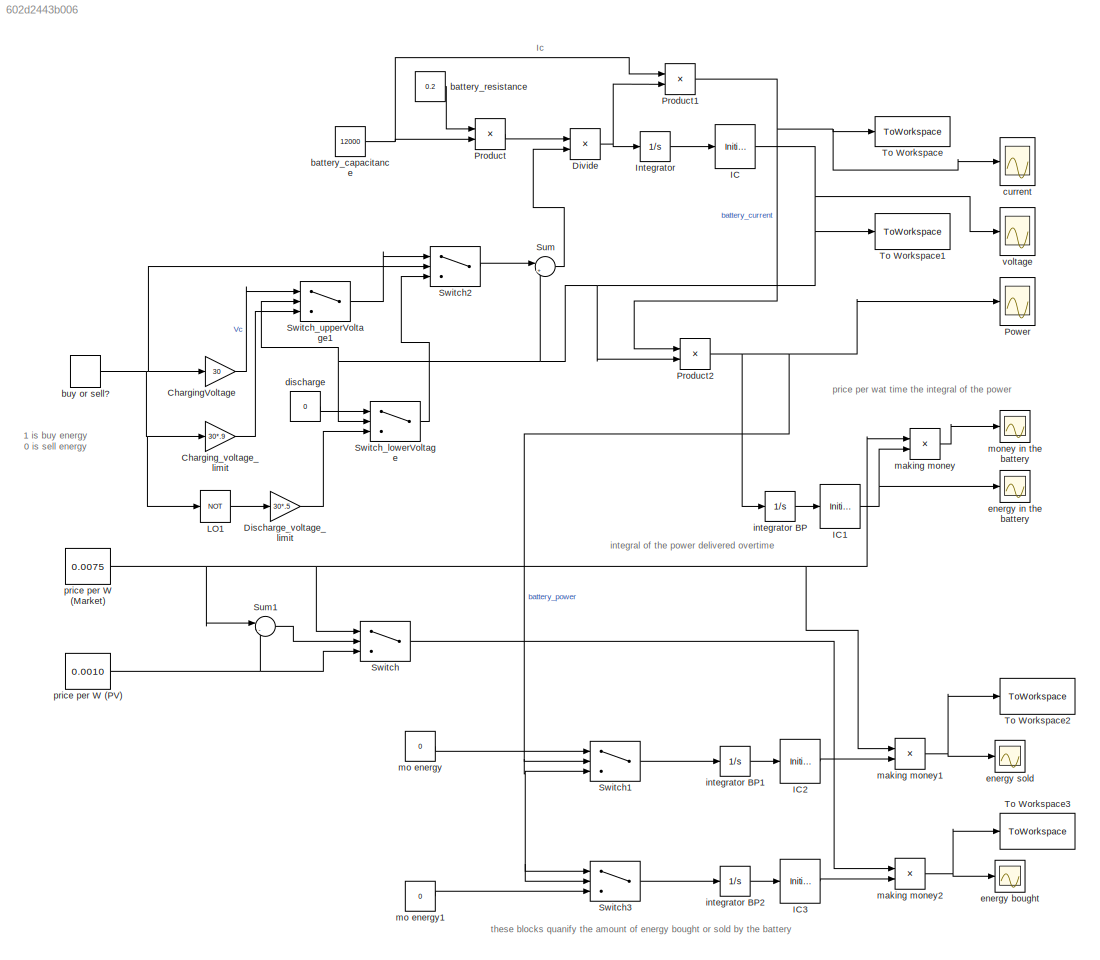
MODEL slx_602d2443b006
KIND model
CONFIG AbsTol = auto
CONFIG EnableMultiTasking = off
CONFIG FixedStep = 1
CONFIG MaxStep = 1e-4
CONFIG MinStep = auto
CONFIG RelTol = 1e-3
CONFIG SampleTimeConstraint = Unconstrained
CONFIG Solver = FixedStepAuto
CONFIG SolverName = FixedStepAuto
CONFIG StartTime = 0.0
CONFIG StopTime = 86400
BLOCK [Gain] ChargingVoltage 
  Gain = 30
  OutDataTypeStr = Inherit: Inherit via internal rule
  ParamDataTypeStr = Inherit: Inherit via internal rule
  SaturateOnIntegerOverflow = off
BLOCK [Gain] Charging_voltage_limit 
  Gain = 30*.9
  OutDataTypeStr = Inherit: Inherit via internal rule
  ParamDataTypeStr = Inherit: Inherit via internal rule
  SaturateOnIntegerOverflow = off
BLOCK [Gain] Discharge_voltage_limit
  Gain = 30*.5
  OutDataTypeStr = Inherit: Inherit via internal rule
  ParamDataTypeStr = Inherit: Inherit via internal rule
  SaturateOnIntegerOverflow = off
BLOCK [Product] Divide
  InputSameDT = off
  Inputs = /*
  OutDataTypeStr = Inherit: Inherit via internal rule
  Ports = [2, 1]
  RndMeth = Floor
  SaturateOnIntegerOverflow = off
BLOCK [InitialCondition] IC
  Value = 0
BLOCK [InitialCondition] IC1
  Value = 0
BLOCK [InitialCondition] IC2
  Value = 0
BLOCK [InitialCondition] IC3
  Value = 0
BLOCK [Integrator] Integrator
  InitialCondition = 30*.2
  Ports = [1, 1]
BLOCK [Logic] LO1
  AllPortsSameDT = off
  Operator = NOT
  OutDataTypeStr = boolean
  Ports = [1, 1]
BLOCK [Scope] Power
  NumInputPorts = 1
  Ports = [1]
  ScopeSpecificationString = Simulink.scopes.TimeScopeBlockCfg('CurrentConfiguration', extmgr.ConfigurationSet(extmgr.Configuration('Core','General UI',true),extmgr.Configuration('Core','Source UI',true),extmgr.Configuration('Sources','WiredSimulink',true,'DataLoggingVariableName','ScopeData2'),extmgr.Configuration('Visuals','Time Domain',true,'SerializedDisplays',{struct('MinYLimReal','-3920.78544','MaxYLimReal','1448.14281'...<+1421ch>
BLOCK [Product] Product
  InputSameDT = off
  OutDataTypeStr = Inherit: Inherit via internal rule
  Ports = [2, 1]
  RndMeth = Floor
  SaturateOnIntegerOverflow = off
BLOCK [Product] Product1
  InputSameDT = off
  OutDataTypeStr = Inherit: Inherit via internal rule
  Ports = [2, 1]
  RndMeth = Floor
  SaturateOnIntegerOverflow = off
BLOCK [Product] Product2
  InputSameDT = off
  OutDataTypeStr = Inherit: Inherit via internal rule
  Ports = [2, 1]
  RndMeth = Floor
  SaturateOnIntegerOverflow = off
BLOCK [Sum] Sum
  IconShape = round
  InputSameDT = off
  Inputs = |+-
  OutDataTypeStr = Inherit: Inherit via internal rule
  Ports = [2, 1]
  SaturateOnIntegerOverflow = off
BLOCK [Sum] Sum1
  IconShape = round
  InputSameDT = off
  Inputs = |-+
  OutDataTypeStr = Inherit: Inherit via internal rule
  Ports = [2, 1]
  SaturateOnIntegerOverflow = off
BLOCK [Switch] Switch
  Criteria = u2 > Threshold
  InputSameDT = off
  SaturateOnIntegerOverflow = off
BLOCK [Switch] Switch1
  InputSameDT = off
  LockScale = on
  SaturateOnIntegerOverflow = off
BLOCK [Switch] Switch2
  InputSameDT = off
  LockScale = on
  SaturateOnIntegerOverflow = off
  Threshold = 1
BLOCK [Switch] Switch3
  InputSameDT = off
  LockScale = on
  SaturateOnIntegerOverflow = off
BLOCK [Switch] Switch_lowerVoltage
  InputSameDT = off
  SaturateOnIntegerOverflow = off
  Threshold = 30*.5
BLOCK [Switch] Switch_upperVoltage1
  InputSameDT = off
  SaturateOnIntegerOverflow = off
  Threshold = 30*.9
BLOCK [ToWorkspace] To Workspace
  FixptAsFi = on
  MaxDataPoints = inf
  Ports = [1]
  SampleTime = -1
  Save2DSignal = 3-D array (concatenate along third dimension)
  SaveFormat = Timeseries
  VariableName = battery_current
BLOCK [ToWorkspace] To Workspace1
  FixptAsFi = on
  MaxDataPoints = inf
  Ports = [1]
  SampleTime = -1
  Save2DSignal = 3-D array (concatenate along third dimension)
  SaveFormat = Timeseries
  VariableName = battery_voltage
BLOCK [ToWorkspace] To Workspace2
  FixptAsFi = on
  MaxDataPoints = inf
  Ports = [1]
  SampleTime = -1
  Save2DSignal = 3-D array (concatenate along third dimension)
  SaveFormat = Timeseries
  VariableName = energy_sold
BLOCK [ToWorkspace] To Workspace3
  FixptAsFi = on
  MaxDataPoints = inf
  Ports = [1]
  SampleTime = -1
  Save2DSignal = 3-D array (concatenate along third dimension)
  SaveFormat = Timeseries
  VariableName = energy_bought
BLOCK [Constant] battery_capacitance
  Value = 12000
BLOCK [Constant] battery_resistance
  Value = 0.2
BLOCK [DiscretePulseGenerator] buy or sell?
  Period = 2400*5
  Ports = [0, 1]
  PulseType = Time based
  PulseWidth = 50
BLOCK [Scope] current 
  NumInputPorts = 1
  Ports = [1]
  ScopeSpecificationString = Simulink.scopes.TimeScopeBlockCfg('CurrentConfiguration', extmgr.ConfigurationSet(extmgr.Configuration('Core','General UI',true),extmgr.Configuration('Core','Source UI',true),extmgr.Configuration('Sources','WiredSimulink',true,'DataLoggingVariableName','ScopeData3'),extmgr.Configuration('Visuals','Time Domain',true,'SerializedDisplays',{struct('MinYLimReal','-163.20919','MaxYLimReal','168.13435','...<+1388ch>
BLOCK [Constant] discharge
  Value = 0
BLOCK [Scope] energy bought
  NumInputPorts = 1
  Ports = [1]
  ScopeSpecificationString = Simulink.scopes.TimeScopeBlockCfg('CurrentConfiguration', extmgr.ConfigurationSet(extmgr.Configuration('Core','General UI',true),extmgr.Configuration('Core','Source UI',true),extmgr.Configuration('Sources','WiredSimulink',true,'DataLoggingVariableName','ScopeData6'),extmgr.Configuration('Visuals','Time Domain',true,'SerializedDisplays',{struct('MinYLimReal','-2694.11137','MaxYLimReal','24247.00237...<+1398ch>
BLOCK [Scope] energy in the battery
  NumInputPorts = 1
  Ports = [1]
  ScopeSpecificationString = Simulink.scopes.TimeScopeBlockCfg('CurrentConfiguration', extmgr.ConfigurationSet(extmgr.Configuration('Core','General UI',true),extmgr.Configuration('Core','Source UI',true),extmgr.Configuration('Sources','WiredSimulink',true,'DataLoggingVariableName','ScopeData1'),extmgr.Configuration('Visuals','Time Domain',true,'SerializedDisplays',{struct('MinYLimReal','-452385.24987','MaxYLimReal','4069334.0...<+1479ch>
BLOCK [Scope] energy sold
  NumInputPorts = 1
  Ports = [1]
  ScopeSpecificationString = Simulink.scopes.TimeScopeBlockCfg('CurrentConfiguration', extmgr.ConfigurationSet(extmgr.Configuration('Core','General UI',true),extmgr.Configuration('Core','Source UI',true),extmgr.Configuration('Sources','WiredSimulink',true,'DataLoggingVariableName','ScopeData5'),extmgr.Configuration('Visuals','Time Domain',true,'SerializedDisplays',{struct('MinYLimReal','-158193.68809','MaxYLimReal','17577.126...<+1408ch>
BLOCK [Integrator] integrator BP
  InitialCondition = 30*.2
  Ports = [1, 1]
BLOCK [Integrator] integrator BP1
  InitialCondition = 30*.2
  Ports = [1, 1]
BLOCK [Integrator] integrator BP2
  InitialCondition = 30*.2
  Ports = [1, 1]
BLOCK [Product] making money
  InputSameDT = off
  OutDataTypeStr = Inherit: Inherit via internal rule
  Ports = [2, 1]
  RndMeth = Floor
  SaturateOnIntegerOverflow = off
BLOCK [Product] making money1
  InputSameDT = off
  OutDataTypeStr = Inherit: Inherit via internal rule
  Ports = [2, 1]
  RndMeth = Floor
  SaturateOnIntegerOverflow = off
BLOCK [Product] making money2
  InputSameDT = off
  OutDataTypeStr = Inherit: Inherit via internal rule
  Ports = [2, 1]
  RndMeth = Floor
  SaturateOnIntegerOverflow = off
BLOCK [Constant] mo energy
  Value = 0
BLOCK [Constant] mo energy1
  Value = 0
BLOCK [Scope] money in the battery
  NumInputPorts = 1
  Ports = [1]
  ScopeSpecificationString = Simulink.scopes.TimeScopeBlockCfg('CurrentConfiguration', extmgr.ConfigurationSet(extmgr.Configuration('Core','General UI',true),extmgr.Configuration('Core','Source UI',true),extmgr.Configuration('Sources','WiredSimulink',true,'DataLoggingVariableName','ScopeData4'),extmgr.Configuration('Visuals','Time Domain',true,'SerializedDisplays',{struct('MinYLimReal','-3604.21584','MaxYLimReal','32437.94252...<+1397ch>
BLOCK [Constant] price per W (Market)
  Value = 0.0075
BLOCK [Constant] price per W (PV)
  Value = 0.0010
BLOCK [Scope] voltage
  NumInputPorts = 1
  Ports = [1]
  ScopeSpecificationString = Simulink.scopes.TimeScopeBlockCfg('CurrentConfiguration', extmgr.ConfigurationSet(extmgr.Configuration('Core','General UI',true),extmgr.Configuration('Core','Source UI',true),extmgr.Configuration('Sources','WiredSimulink',true),extmgr.Configuration('Visuals','Time Domain',true,'SerializedDisplays',{struct('MinYLimReal','-3.25187','MaxYLimReal','29.26684','YLabelReal','','MinYLimMag','0.00000','Max...<+1326ch>
ANNOTATION (root): 1 is buy energy 0 is sell energy
ANNOTATION (root): Ic
ANNOTATION (root): integral of the power delivered overtime
ANNOTATION (root): price per wat time the integral of the power
ANNOTATION (root): these blocks quanify the amount of energy bought or sold by the battery
LINE ChargingVoltage :1 -> Switch_upperVoltage1:1
LINE Charging_voltage_limit :1 -> Switch_upperVoltage1:3
LINE Discharge_voltage_limit:1 -> Switch_lowerVoltage:3
NET Divide:1 -> Integrator:1, Product1:2
NET IC1:1 -> energy in the battery:1, making money:2
LINE IC2:1 -> making money1:2
LINE IC3:1 -> making money2:2
NET IC:1 -> Product2:2, Sum:2, Switch_lowerVoltage:2, Switch_upperVoltage1:2, To Workspace1:1, voltage:1
LINE Integrator:1 -> IC:1
LINE LO1:1 -> Discharge_voltage_limit:1
NET Product1:1 -> Product2:1, To Workspace:1, current :1
NET Product2:1 -> Power:1, Switch1:2, Switch1:3, Switch3:1, Switch3:2, integrator BP:1
LINE Product:1 -> Divide:1
LINE Sum1:1 -> Switch:2
LINE Sum:1 -> Divide:2
LINE Switch1:1 -> integrator BP1:1
LINE Switch2:1 -> Sum:1
LINE Switch3:1 -> integrator BP2:1
LINE Switch:1 -> making money2:1
LINE Switch_lowerVoltage:1 -> Switch2:3
LINE Switch_upperVoltage1:1 -> Switch2:1
NET battery_capacitance:1 -> Product1:1, Product:2
LINE battery_resistance:1 -> Product:1
NET buy or sell?:1 -> ChargingVoltage :1, Charging_voltage_limit :1, LO1:1, Switch2:2
LINE discharge:1 -> Switch_lowerVoltage:1
LINE integrator BP1:1 -> IC2:1
LINE integrator BP2:1 -> IC3:1
LINE integrator BP:1 -> IC1:1
NET making money1:1 -> To Workspace2:1, energy sold:1
NET making money2:1 -> To Workspace3:1, energy bought:1
LINE making money:1 -> money in the battery:1
LINE mo energy1:1 -> Switch3:3
LINE mo energy:1 -> Switch1:1
NET price per W (Market):1 -> Sum1:1, Switch:1, making money1:1, making money:1
NET price per W (PV):1 -> Sum1:2, Switch:3
note: NET lines group one-source signal fan-out (src -> all destinations, sorted); 1:1 wires keep LINE
